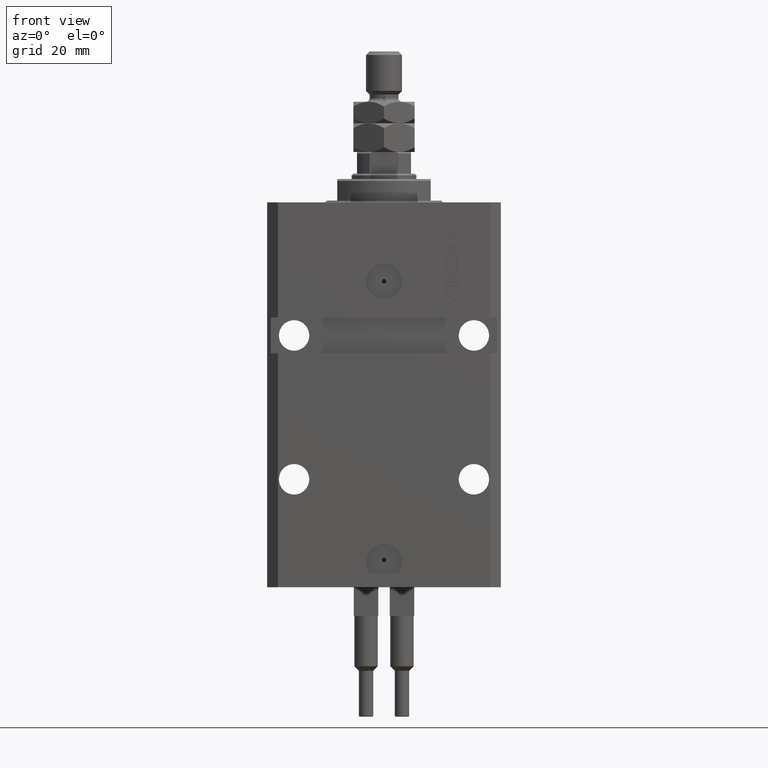
[diagram: clean part render]
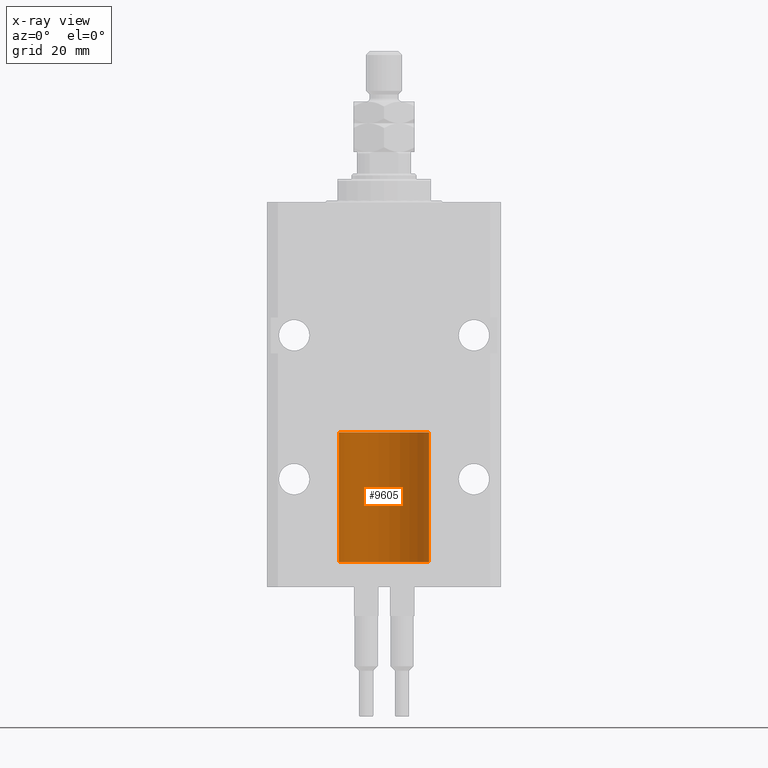
[diagram: x-ray — body ghosted, one internal face saturated and labeled with its STEP entity id]
A machine part, front view, then the same camera in x-ray: the body is ghosted and one INTERNAL B-rep face — a face not visible from any outside direction — is saturated and labeled: STEP entity #9605.
In plain terms, the highlighted cylindrical surface (partial cylindrical patch) has radius 12.5 mm, axis along (-0, -0, -1).
Its self-contained STEP definition (entity closure, byte-faithful):
#82 = CARTESIAN_POINT ( 'NONE',  ( 0.000000000000000000, 0.000000000000000000, 36.10000000000000142 ) ) ;
#968 = FACE_OUTER_BOUND ( 'NONE', #4139, .T. ) ;
#4139 = EDGE_LOOP ( 'NONE', ( #22674, #23594, #20154, #20253 ) ) ;
#4298 = DIRECTION ( 'NONE',  ( 1.000000000000000000, 0.000000000000000000, 0.000000000000000000 ) ) ;
#4599 = VERTEX_POINT ( 'NONE', #8914 ) ;
#6689 = CARTESIAN_POINT ( 'NONE',  ( 12.50000000000000000, 1.530808498934191521E-15, 36.10000000000000142 ) ) ;
#8123 = DIRECTION ( 'NONE',  ( 0.000000000000000000, 0.000000000000000000, 1.000000000000000000 ) ) ;
#8161 = AXIS2_PLACEMENT_3D ( 'NONE', #23988, #8123, #4298 ) ;
#8712 = LINE ( 'NONE', #39933, #12025 ) ;
#8914 = CARTESIAN_POINT ( 'NONE',  ( 12.50000000000000000, 1.530808498934191521E-15, 36.10000000000000142 ) ) ;
#9605 = ADVANCED_FACE ( 'NONE', ( #968 ), #28612, .T. ) ;
#12025 = VECTOR ( 'NONE', #16902, 1000.000000000000000 ) ;
#12687 = VECTOR ( 'NONE', #21816, 1000.000000000000000 ) ;
#15512 = EDGE_CURVE ( 'NONE', #4599, #35310, #33543, .T. ) ;
#16197 = EDGE_CURVE ( 'NONE', #4599, #27535, #16813, .T. ) ;
#16813 = CIRCLE ( 'NONE', #29080, 12.50000000000000000 ) ;
#16902 = DIRECTION ( 'NONE',  ( -0.000000000000000000, -0.000000000000000000, -1.000000000000000000 ) ) ;
#20154 = ORIENTED_EDGE ( 'NONE', *, *, #45571, .T. ) ;
#20253 = ORIENTED_EDGE ( 'NONE', *, *, #34651, .F. ) ;
#21816 = DIRECTION ( 'NONE',  ( -0.000000000000000000, -0.000000000000000000, -1.000000000000000000 ) ) ;
#22674 = ORIENTED_EDGE ( 'NONE', *, *, #16197, .F. ) ;
#23594 = ORIENTED_EDGE ( 'NONE', *, *, #15512, .T. ) ;
#23988 = CARTESIAN_POINT ( 'NONE',  ( 0.000000000000000000, 0.000000000000000000, 0.000000000000000000 ) ) ;
#24066 = AXIS2_PLACEMENT_3D ( 'NONE', #43978, #44224, #24772 ) ;
#24772 = DIRECTION ( 'NONE',  ( -1.000000000000000000, 0.000000000000000000, 0.000000000000000000 ) ) ;
#27535 = VERTEX_POINT ( 'NONE', #27614 ) ;
#27614 = CARTESIAN_POINT ( 'NONE',  ( -12.50000000000000000, 0.000000000000000000, 36.10000000000000142 ) ) ;
#28612 = CYLINDRICAL_SURFACE ( 'NONE', #24066, 12.50000000000000000 ) ;
#29080 = AXIS2_PLACEMENT_3D ( 'NONE', #82, #46938, #38761 ) ;
#29374 = CARTESIAN_POINT ( 'NONE',  ( -12.50000000000000000, 0.000000000000000000, 0.000000000000000000 ) ) ;
#30227 = CIRCLE ( 'NONE', #8161, 12.50000000000000000 ) ;
#33543 = LINE ( 'NONE', #6689, #12687 ) ;
#34651 = EDGE_CURVE ( 'NONE', #27535, #42352, #8712, .T. ) ;
#35310 = VERTEX_POINT ( 'NONE', #38580 ) ;
#38580 = CARTESIAN_POINT ( 'NONE',  ( 12.50000000000000000, 1.530808498934191521E-15, 0.000000000000000000 ) ) ;
#38761 = DIRECTION ( 'NONE',  ( 1.000000000000000000, 0.000000000000000000, 0.000000000000000000 ) ) ;
#39933 = CARTESIAN_POINT ( 'NONE',  ( -12.50000000000000000, 0.000000000000000000, 36.10000000000000142 ) ) ;
#42352 = VERTEX_POINT ( 'NONE', #29374 ) ;
#43978 = CARTESIAN_POINT ( 'NONE',  ( 0.000000000000000000, 0.000000000000000000, 36.10000000000000142 ) ) ;
#44224 = DIRECTION ( 'NONE',  ( -0.000000000000000000, -0.000000000000000000, -1.000000000000000000 ) ) ;
#45571 = EDGE_CURVE ( 'NONE', #35310, #42352, #30227, .T. ) ;
#46938 = DIRECTION ( 'NONE',  ( 0.000000000000000000, 0.000000000000000000, 1.000000000000000000 ) ) ;